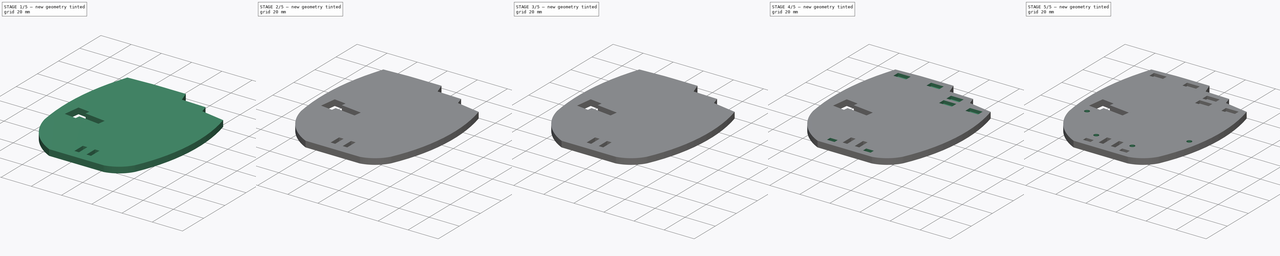
[diagram: build sequence overview — one tinted view per stage of 5, left to right]
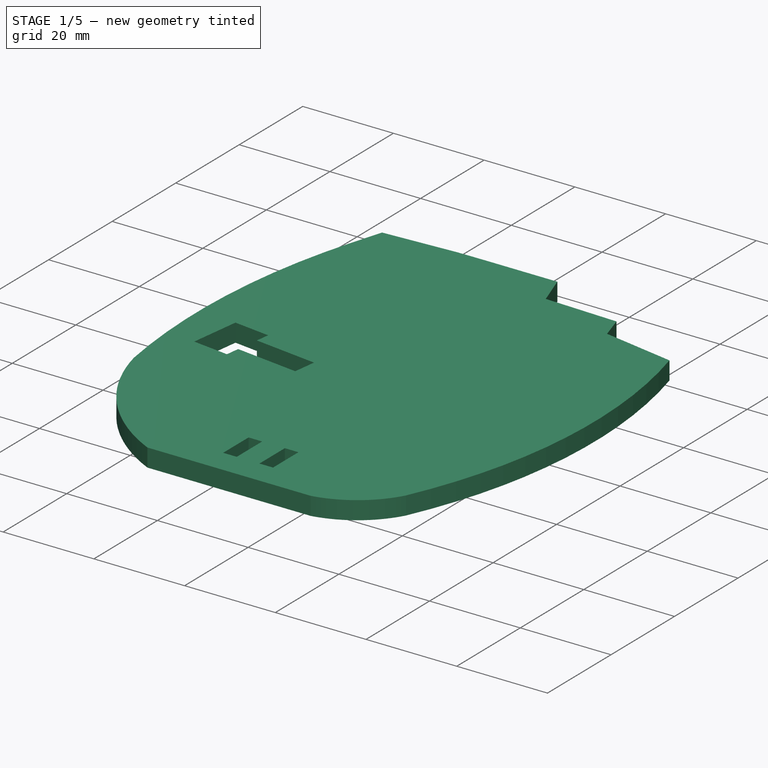
[diagram: stage 1 of 5 — iso view after this stage's code; geometry added in this stage tinted green]
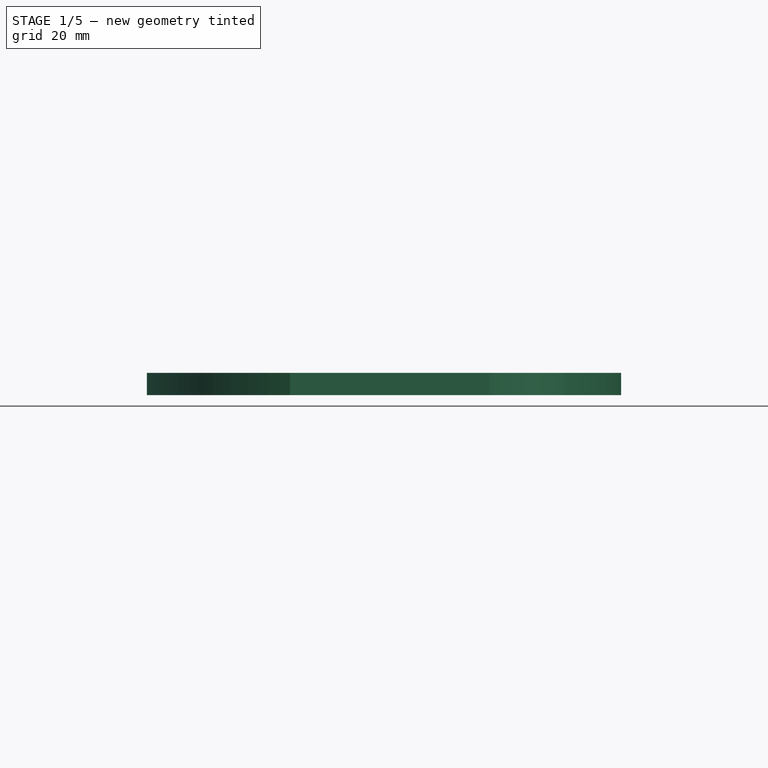
[diagram: stage 1 of 5 — front view after this stage's code; geometry added in this stage tinted green]
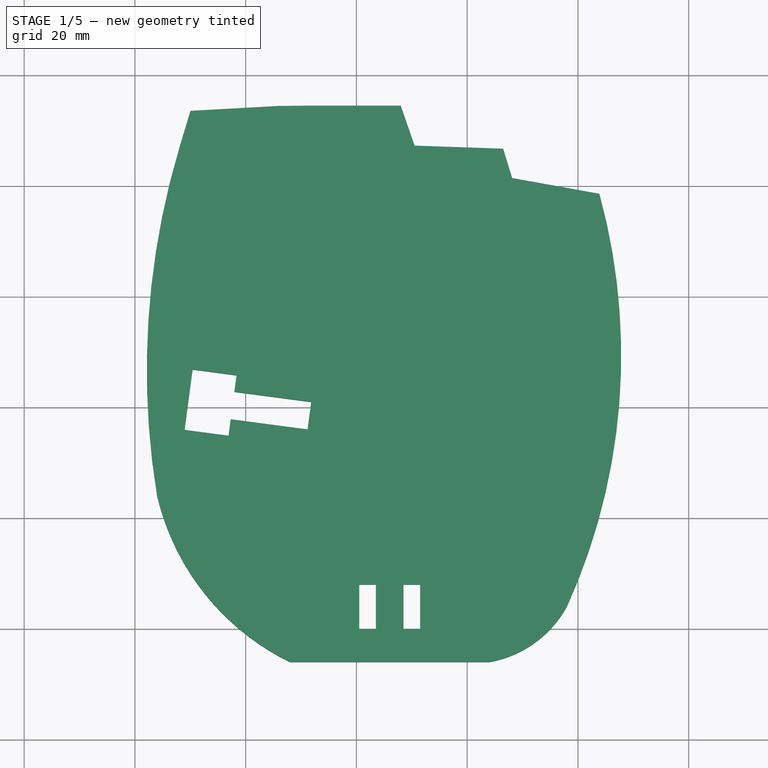
[diagram: stage 1 of 5 — top view after this stage's code; geometry added in this stage tinted green]
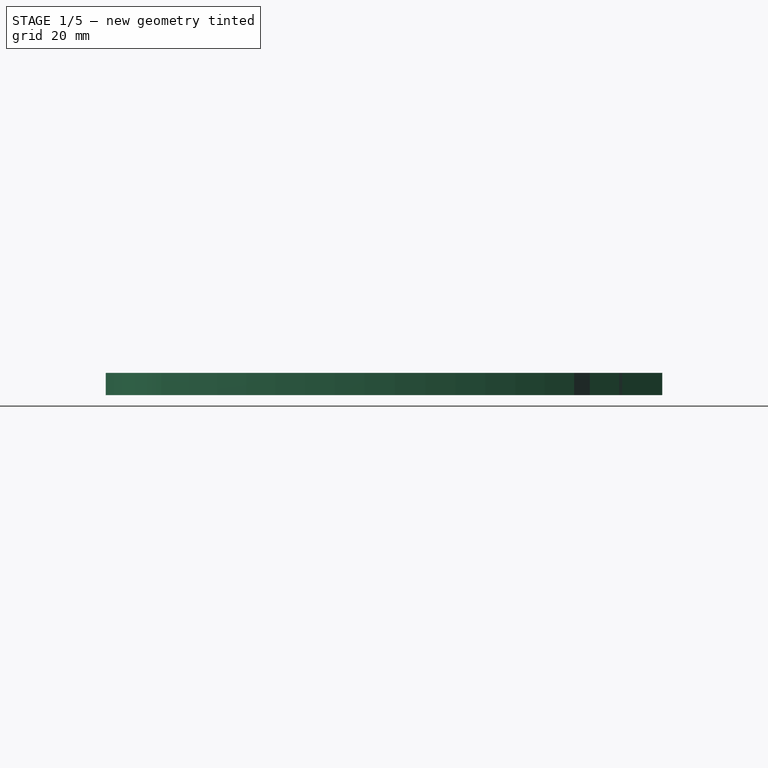
[diagram: stage 1 of 5 — right view after this stage's code; geometry added in this stage tinted green]
FCSTD DOCUMENT  (FreeCAD 0.15R4671 (Git))
Label: PalmUp
License: All rights reserved
LicenseURL: http://en.wikipedia.org/wiki/All_rights_reserved
objects: Sketcher::SketchObject×10, PartDesign::Pocket×8, PartDesign::Fillet×5, PartDesign::Pad×2, Part::FeaturePython×1
note: 36 computed .brp shape members not serialized (recipe doc carries the construction recipe); baked Part::Feature solids carry a one-line shape summary decoded from their .brp

FEATURE [Sketcher::SketchObject] Sketch
  sketch-geometry (21):
    g0: LineSegment StartX=43.8729 StartY=78.5795 StartZ=0 EndX=28.1271 EndY=81.4205 EndZ=0
    g1: LineSegment StartX=28.1271 StartY=81.4205 StartZ=0 EndX=26.4951 EndY=86.7201 EndZ=0
    g2: LineSegment StartX=26.4951 StartY=86.7201 StartZ=0 EndX=10.5049 EndY=87.2799 EndZ=0
    g3: LineSegment StartX=10.5049 StartY=87.2799 StartZ=0 EndX=8 EndY=94.5 EndZ=0
    g4: LineSegment StartX=8 StartY=94.5 StartZ=0 EndX=-8 EndY=94.5 EndZ=0
    g5: LineSegment StartX=-8 StartY=94.5 StartZ=0 EndX=-14.0123 EndY=94.4427 EndZ=0
    g6: LineSegment StartX=-14.0123 StartY=94.4427 StartZ=0 EndX=-29.9877 EndY=93.5573 EndZ=0
    g7: ArcOfCircle CenterX=20.5055 CenterY=13.6923 CenterZ=0 NormalX=0 NormalY=0 NormalZ=1 Radius=20 StartAngle=4.88802 EndAngle=5.77726
    g8: ArcOfCircle CenterX=-62.1892 CenterY=49.4105 CenterZ=0 NormalX=0 NormalY=0 NormalZ=1 Radius=110 StartAngle=5.85763 EndAngle=6.55157
    g9: ArcOfCircle CenterX=7.77666 CenterY=34.4213 CenterZ=0 NormalX=0 NormalY=0 NormalZ=1 Radius=45 StartAngle=3.3753 EndAngle=4.25737
    g10: LineSegment [constr] StartX=47.8108 StartY=0 StartZ=0 EndX=47.8108 EndY=94.5 EndZ=0
    g11: LineSegment [constr] StartX=-37.8597 StartY=0 StartZ=0 EndX=-37.8597 EndY=94.5 EndZ=0
    g12: GeomPoint [constr] X=0 Y=0 Z=0
    g13: LineSegment [constr] StartX=0 StartY=0 StartZ=0 EndX=-22 EndY=94 EndZ=0
    g14: LineSegment [constr] StartX=0 StartY=0 StartZ=0 EndX=0 EndY=94.5 EndZ=0
    g15: LineSegment [constr] StartX=18.5 StartY=87 StartZ=0 EndX=0 EndY=0 EndZ=0
    g16: LineSegment [constr] StartX=0 StartY=0 StartZ=0 EndX=36 EndY=80 EndZ=0
    g17: LineSegment StartX=-29.9877 StartY=93.5573 StartZ=0 EndX=-32 EndY=86.8225 EndZ=0
    g18: ArcOfCircle CenterX=102.14 CenterY=46.743 CenterZ=0 NormalX=0 NormalY=0 NormalZ=1 Radius=140 StartAngle=2.85125 EndAngle=3.30477
    g19: LineSegment StartX=-12 StartY=-6 StartZ=0 EndX=24 EndY=-6 EndZ=0
    g20: LineSegment [constr] StartX=0 StartY=0 StartZ=0 EndX=0 EndY=-6 EndZ=0
  constraints (67):
    c: Coincident(g1,g0)
    c: Coincident(g2,g1)
    c: Coincident(g3,g2)
    c: Coincident(g4,g3)
    c: Coincident(g5,g4)
    c: Coincident(g6,g5)
    c: Coincident(g8,g0)
    c: Coincident(g8,g7)
    c: Equal(g0,g2)
    c: Equal(g2,g4)
    c: Vertical(g10)
    c: Vertical(g11)
    c: Tangent(g10,g8)
    c: Radius(g7) = 20
    c: Radius(g9) = 45
    c: Radius(g8) = 110
    c: Coincident(g13,g12)
    c: PointOnObject(g13,g6)
    c: Coincident(g14,g12)
    c: PointOnObject(g14,g4)
    c: PointOnObject(g15,g2)
    c: Coincident(g15,g12)
    c: Coincident(g16,g12)
    c: PointOnObject(g16,g0)
    c: Horizontal(g4)
    c: Vertical(g14)
    c: Symmetric(g4,g3,g14)
    c: DistanceY(g14,g12) = -94.5
    c: DistanceY(g15,g12) = -87
    c: DistanceY(g12,g16) = 80
    c: Angle(g6,g13) = 1.74533
    c: DistanceY(g9,g12) = -24
    c: DistanceX(g9,g12) = 36
    c: DistanceX(g12,g7) = 38
    c: DistanceY(g12,g7) = 4
    c: Coincident(g-1,g12)
    c: Equal(g14,g11)
    c: Equal(g11,g10)
    c: PointOnObject(g10,g-1)
    c: PointOnObject(g11,g-1)
    c: Angle(g16,g0) = 1.81514
    c: Angle(g15,g2) = 1.74533
    c: Distance(g2,g15) = 8
    c: Distance(g0,g16) = 8
    c: DistanceX(g4) = -16
    c: Distance(g13,g5) = 8
    c: DistanceY(g-1,g13) = 94
    c: DistanceX(g-1,g13) = -22
    c: DistanceX(g14,g15) = 18.5
    c: DistanceX(g-1,g16) = 36
    c: Coincident(g17,g6)
    c: Equal(g6,g4)
    c: Coincident(g18,g9)
    c: Coincident(g18,g17)
    c: Radius(g18) = 140
    c: Tangent(g17,g18)
    c: DistanceX(g-1,g17) = -32
    c: Tangent(g11,g18)
    c: Coincident(g19,g9)
    c: Coincident(g19,g7)
    c: Horizontal(g19)
    c: DistanceX(g19) = 36
    c: Coincident(g20,g-1)
    c: PointOnObject(g20,g19)
    c: Vertical(g20)
    c: DistanceX(g-1,g9) = -12
    c: DistanceY(g-1,g9) = -6
FEATURE [PartDesign::Pad] Pad  label="Main Down Palm"
  Length = 4
  Length2 = 100
  Sketch = -> Sketch
  Type = 0
FEATURE [Sketcher::SketchObject] Sketch016
  Placement = pos=(0,0,0) rot=(1,0,0;3.14159rad)
  Support = -> Pad [Face14]
  sketch-geometry (11):
    g0: LineSegment StartX=-8.82848 StartY=-36.0217 StartZ=0 EndX=-8.17152 EndY=-40.9783 EndZ=0
    g1: LineSegment StartX=-29.5866 StartY=-46.8429 StartZ=0 EndX=-31.0319 EndY=-35.9383 EndZ=0
    g2: GeomPoint [constr] X=-8.5 Y=-38.5 Z=0
    g3: LineSegment [constr] StartX=0 StartY=0 StartZ=0 EndX=-8.5 EndY=-38.5 EndZ=0
    g4: LineSegment [constr] StartX=-8.5 StartY=-38.5 StartZ=0 EndX=-30.3093 EndY=-41.3906 EndZ=0
    g5: LineSegment StartX=-31.0319 StartY=-35.9383 StartZ=0 EndX=-23.1013 EndY=-34.8872 EndZ=0
    g6: LineSegment StartX=-23.1013 StartY=-34.8872 StartZ=0 EndX=-22.7071 EndY=-37.8612 EndZ=0
    g7: LineSegment StartX=-22.7071 StartY=-37.8612 StartZ=0 EndX=-8.82848 EndY=-36.0217 EndZ=0
    g8: LineSegment StartX=-29.5866 StartY=-46.8429 StartZ=0 EndX=-21.656 EndY=-45.7918 EndZ=0
    g9: LineSegment StartX=-21.656 StartY=-45.7918 StartZ=0 EndX=-22.0501 EndY=-42.8178 EndZ=0
    g10: LineSegment StartX=-22.0501 StartY=-42.8178 StartZ=0 EndX=-8.17152 EndY=-40.9783 EndZ=0
  constraints (30):
    c: Distance(g0) = 5
    c: PointOnObject(g2,g0)
    c: Distance(g2,g0) = 2.5
    c: DistanceX(g-1,g2) = -8.5
    c: DistanceY(g-1,g2) = -38.5
    c: Coincident(g3,g-1)
    c: Coincident(g2,g3)
    c: Angle(g0,g3) = 2.79253
    c: Parallel(g1,g0)
    c: Coincident(g4,g2)
    c: PointOnObject(g4,g1)
    c: Symmetric(g1,g1,g4)
    c: Distance(g4) = 22
    c: Distance(g1) = 11
    c: Coincident(g5,g6)
    c: Coincident(g6,g7)
    c: Coincident(g7,g0)
    c: Coincident(g1,g8)
    c: Coincident(g8,g9)
    c: Coincident(g9,g10)
    c: Coincident(g10,g0)
    c: Parallel(g10,g4)
    c: Parallel(g4,g7)
    c: Perpendicular(g7,g6)
    c: Perpendicular(g9,g10)
    c: Parallel(g5,g4)
    c: Parallel(g4,g8)
    c: Symmetric(g9,g6,g4)
    c: Coincident(g5,g1)
    c: Distance(g7) = 14
FEATURE [PartDesign::Pocket] Pocket  label="Thumb Tendon"
  Length = 5
  Sketch = -> Sketch016
  Type = 1
FEATURE [Sketcher::SketchObject] Sketch018
  ExternalGeometry = -> [Pocket]
  Placement = pos=(0,0,0) rot=(1,0,0;3.14159rad)
  Support = -> Pocket [Face4]
  sketch-geometry (11):
    g0: LineSegment StartX=11.5 StartY=0 StartZ=0 EndX=11.5 EndY=-8 EndZ=0
    g1: LineSegment StartX=0.5 StartY=-8 StartZ=0 EndX=0.5 EndY=0 EndZ=0
    g2: LineSegment [constr] StartX=6 StartY=6 StartZ=0 EndX=6 EndY=-8 EndZ=0
    g3: LineSegment StartX=0.5 StartY=-8 StartZ=0 EndX=3.5 EndY=-8 EndZ=0
    g4: LineSegment StartX=8.5 StartY=-8 StartZ=0 EndX=11.5 EndY=-8 EndZ=0
    g5: LineSegment StartX=8.5 StartY=-8 StartZ=0 EndX=8.5 EndY=0 EndZ=0
    g6: LineSegment StartX=3.5 StartY=-8 StartZ=0 EndX=3.5 EndY=0 EndZ=0
    g7: LineSegment StartX=0.5 StartY=0 StartZ=0 EndX=3.5 EndY=0 EndZ=0
    g8: LineSegment StartX=8.5 StartY=0 StartZ=0 EndX=11.5 EndY=0 EndZ=0
    g9: LineSegment [constr] StartX=3.5 StartY=0 StartZ=0 EndX=8.5 EndY=0 EndZ=0
    g10: LineSegment [constr] StartX=3.5 StartY=-8 StartZ=0 EndX=8.5 EndY=-8 EndZ=0
  constraints (30):
    c: Vertical(g0)
    c: Vertical(g1)
    c: Symmetric(g1,g0,g2)
    c: DistanceY(g0) = -8
    c: Coincident(g3,g1)
    c: Horizontal(g3)
    c: Coincident(g4,g0)
    c: Horizontal(g4)
    c: Equal(g3,g4)
    c: PointOnObject(g2,g-3)
    c: Symmetric(g-3,g-3,g2)
    c: DistanceY(g0,g-3) = 6
    c: Coincident(g5,g4)
    c: Vertical(g5)
    c: Coincident(g6,g3)
    c: Vertical(g6)
    c: Coincident(g7,g1)
    c: Coincident(g7,g6)
    c: Horizontal(g7)
    c: Coincident(g8,g5)
    c: Coincident(g8,g0)
    c: Horizontal(g8)
    c: Coincident(g9,g6)
    c: Coincident(g9,g5)
    c: Horizontal(g9)
    c: Coincident(g10,g3)
    c: Coincident(g10,g4)
    c: PointOnObject(g2,g10)
    c: DistanceX(g1,g0) = 11
    c: DistanceX(g8) = 3
FEATURE [PartDesign::Pocket] Pocket001  label="Tendon Pillars Socket"
  Length = 5
  Sketch = -> Sketch018
  Type = 1
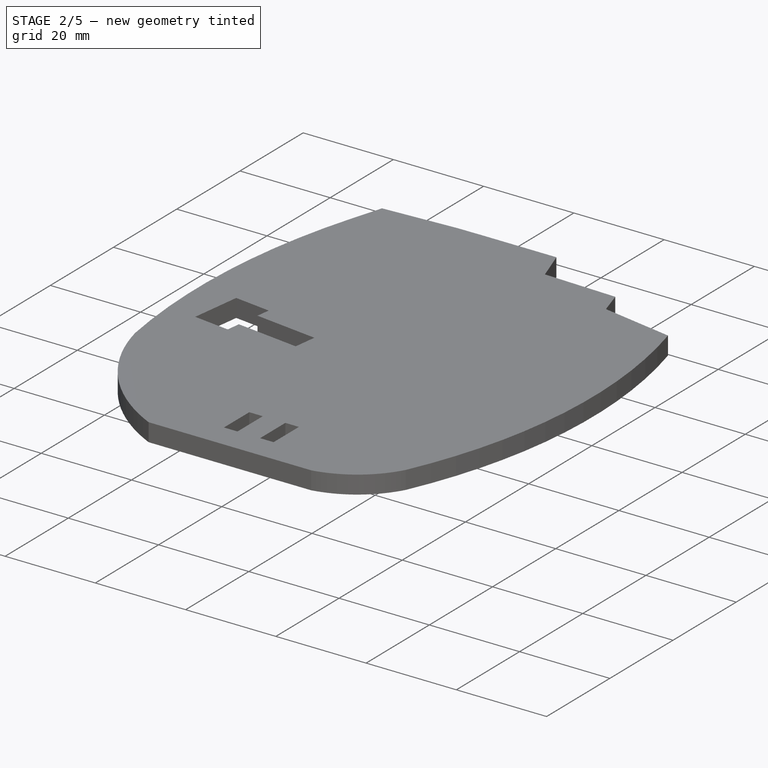
[diagram: stage 2 of 5 — iso view after this stage's code; geometry added in this stage tinted green]
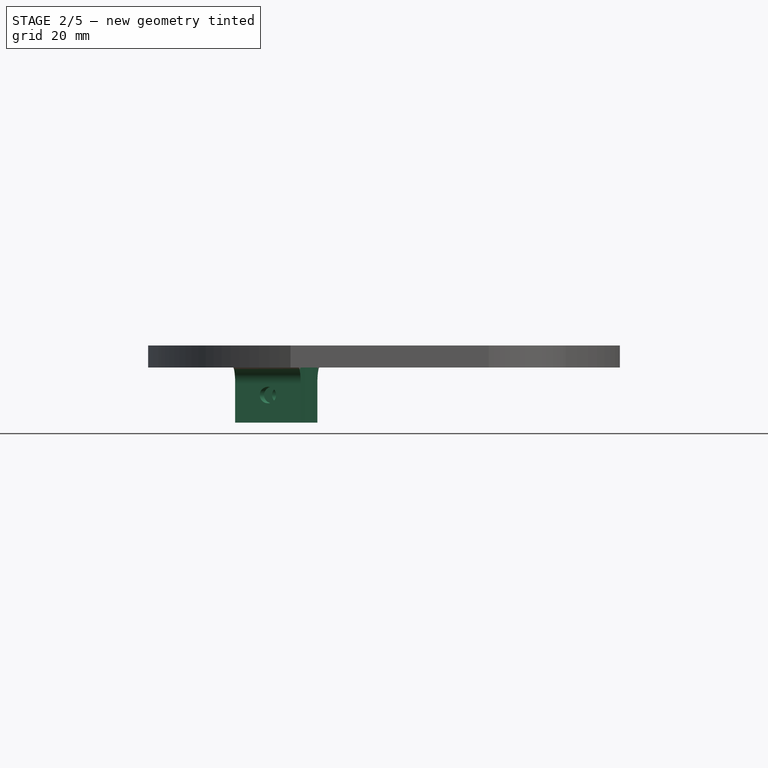
[diagram: stage 2 of 5 — front view after this stage's code; geometry added in this stage tinted green]
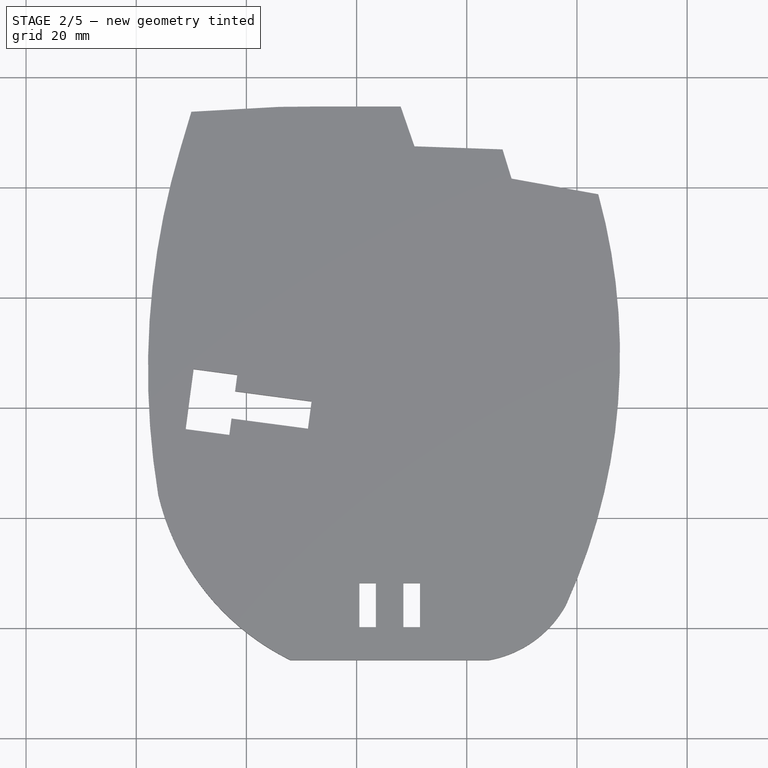
[diagram: stage 2 of 5 — top view after this stage's code; geometry added in this stage tinted green]
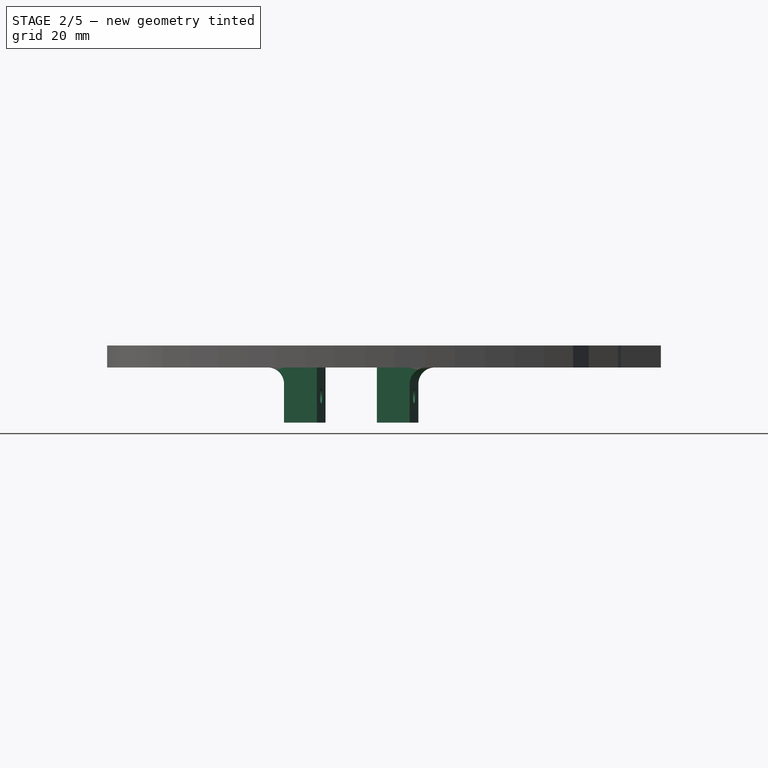
[diagram: stage 2 of 5 — right view after this stage's code; geometry added in this stage tinted green]
FEATURE [Sketcher::SketchObject] Sketch019
  ExternalGeometry = -> [Pocket001]
  Placement = pos=(0,0,0) rot=(1,0,0;3.14159rad)
  Support = -> Pocket001 [Face4]
  sketch-geometry (8):
    g0: LineSegment StartX=-21.25 StartY=-33.633 StartZ=0 EndX=-9.35404 EndY=-32.0564 EndZ=0
    g1: LineSegment StartX=-9.35404 StartY=-32.0564 StartZ=0 EndX=-10.1424 EndY=-26.1084 EndZ=0
    g2: LineSegment StartX=-10.1424 StartY=-26.1084 StartZ=0 EndX=-22.0384 EndY=-27.6851 EndZ=0
    g3: LineSegment StartX=-22.0384 StartY=-27.6851 StartZ=0 EndX=-21.25 EndY=-33.633 EndZ=0
    g4: LineSegment StartX=-19.8047 StartY=-44.5377 StartZ=0 EndX=-7.90874 EndY=-42.961 EndZ=0
    g5: LineSegment StartX=-7.90874 StartY=-42.961 StartZ=0 EndX=-7.12039 EndY=-48.909 EndZ=0
    g6: LineSegment StartX=-7.12039 StartY=-48.909 StartZ=0 EndX=-19.0164 EndY=-50.4857 EndZ=0
    g7: LineSegment StartX=-19.0164 StartY=-50.4857 StartZ=0 EndX=-19.8047 EndY=-44.5377 EndZ=0
  constraints (24):
    c: Coincident(g0,g1)
    c: Coincident(g1,g2)
    c: Coincident(g2,g3)
    c: Coincident(g3,g0)
    c: Coincident(g5,g6)
    c: Coincident(g6,g7)
    c: Perpendicular(g-4,g7)
    c: Parallel(g7,g5)
    c: Parallel(g6,g-4)
    c: Distance(g4,g4) = 12
    c: Distance(g5) = 6
    c: Parallel(g0,g-3)
    c: Perpendicular(g0,g1)
    c: Parallel(g1,g3)
    c: Parallel(g0,g2)
    c: Equal(g1,g5)
    c: Distance(g0) = 12
    c: PointOnObject(g-3,g1)
    c: Distance(g0,g-3) = 4
    c: Coincident(g4,g5)
    c: Coincident(g7,g4)
    c: Parallel(g4,g6)
    c: PointOnObject(g-4,g5)
    c: Distance(g-4,g4) = 2
FEATURE [PartDesign::Pad] Pad001  label="Thumb Base"
  Length = 10
  Length2 = 100
  Sketch = -> Sketch019
  Type = 0
FEATURE [Sketcher::SketchObject] Sketch020
  ExternalGeometry = -> [Pad001]
  Placement = pos=(3.22558,24.3366,0) rot=(0.995675,-0.065696,-0.065696;1.57513rad)
  Support = -> Pad001 [Face19]
  sketch-geometry (2):
    g0: Circle CenterX=-19.4849 CenterY=-5 CenterZ=0 NormalX=0 NormalY=0 NormalZ=1 Radius=1.5
    g1: LineSegment [constr] StartX=-19.4849 StartY=-10 StartZ=0 EndX=-19.4849 EndY=-5 EndZ=0
  constraints (6):
    c: Vertical(g1)
    c: Coincident(g1,g0)
    c: Radius(g0) = 1.5
    c: PointOnObject(g1,g-3)
    c: Symmetric(g-3,g-3,g1)
    c: DistanceY(g0,g-3) = -5
FEATURE [PartDesign::Pocket] Pocket002  label="Thumb Axis"
  Length = 5
  Sketch = -> Sketch020
  Type = 1
FEATURE [PartDesign::Fillet] Fillet
  Base = -> Pocket002 [Edge43,Edge24]
  Radius = 3
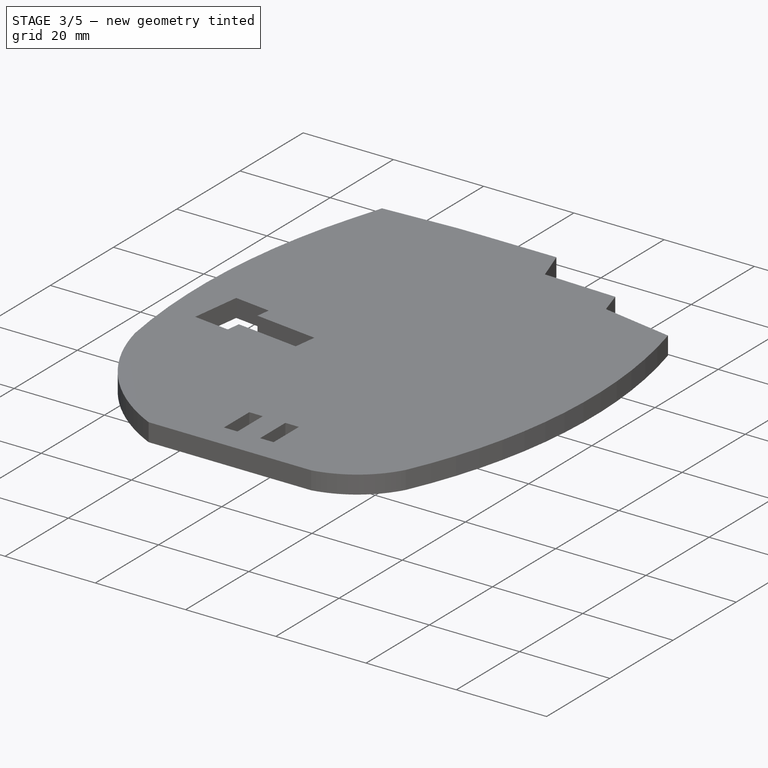
[diagram: stage 3 of 5 — iso view after this stage's code; geometry added in this stage tinted green]
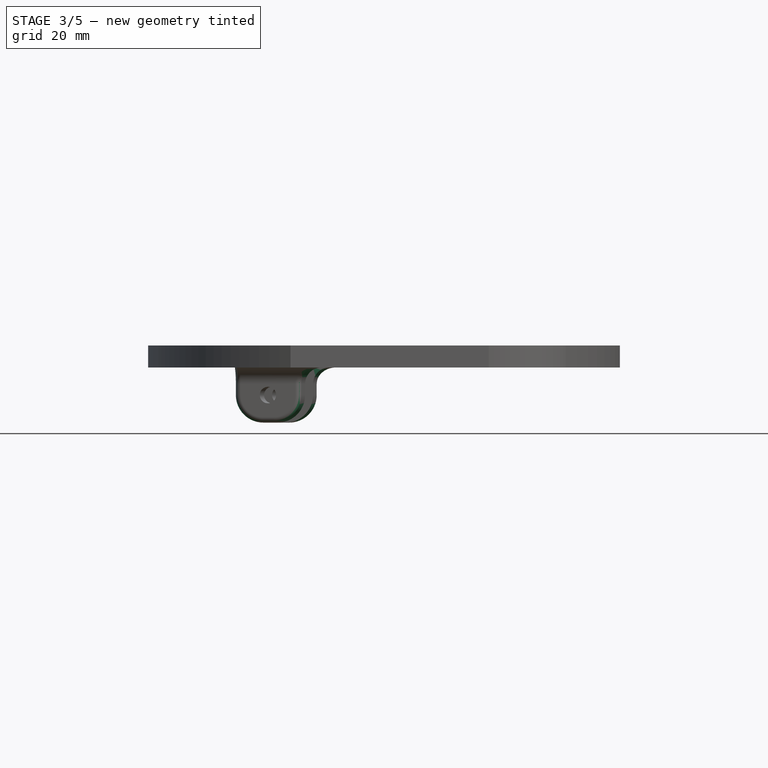
[diagram: stage 3 of 5 — front view after this stage's code; geometry added in this stage tinted green]
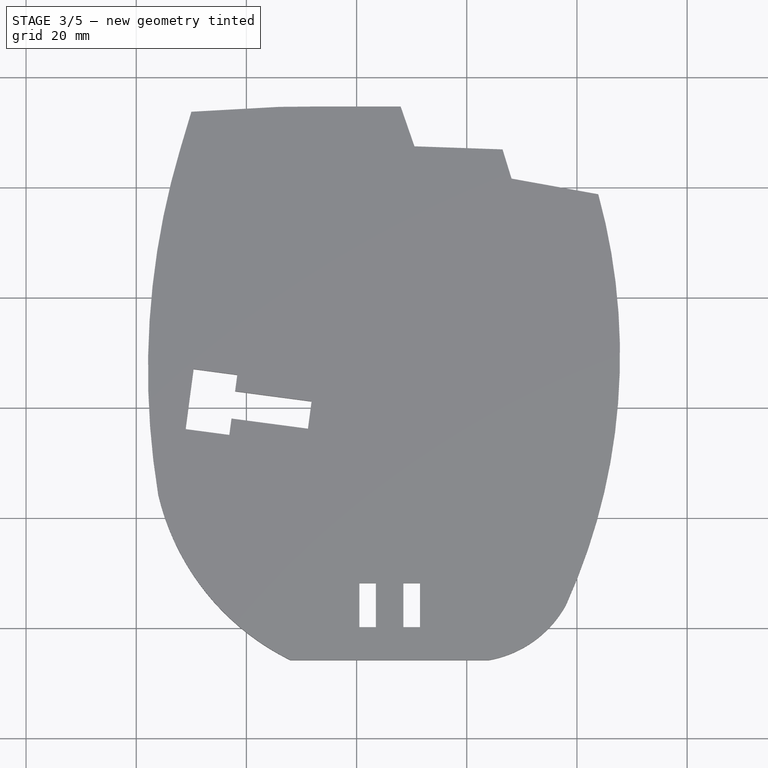
[diagram: stage 3 of 5 — top view after this stage's code; geometry added in this stage tinted green]
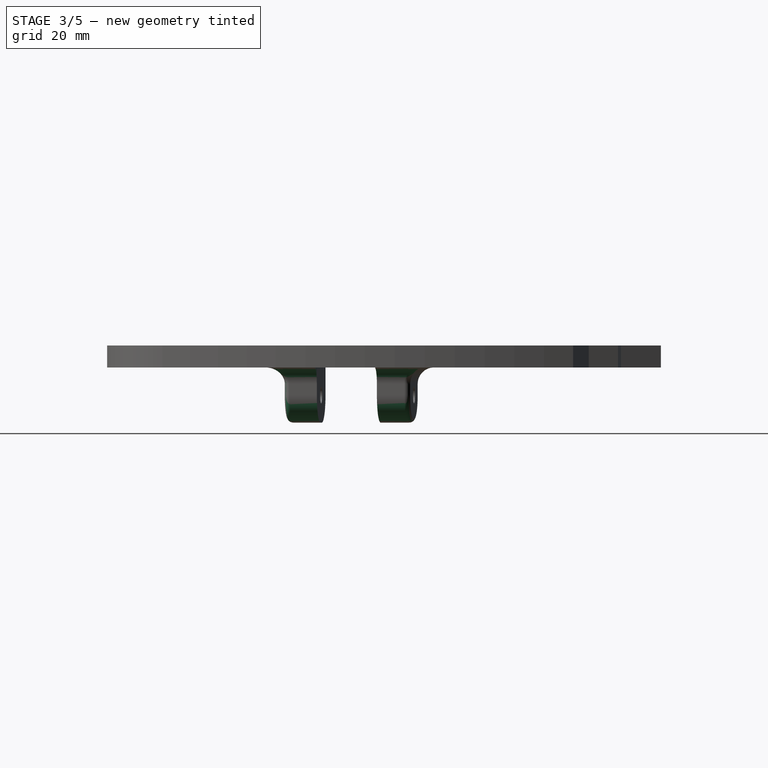
[diagram: stage 3 of 5 — right view after this stage's code; geometry added in this stage tinted green]
FEATURE [PartDesign::Fillet] Fillet001
  Base = -> Fillet [Edge121,Edge113,Edge44,Edge52]
  Radius = 5
FEATURE [PartDesign::Fillet] Fillet002
  Base = -> Fillet001 [Edge6,Edge5,Edge54,Edge53]
  Radius = 3
FEATURE [PartDesign::Fillet] Fillet003
  Base = -> Fillet002 [Edge146]
  Radius = 1
FEATURE [PartDesign::Fillet] Fillet004
  Base = -> Fillet003 [Edge163]
  Radius = 1
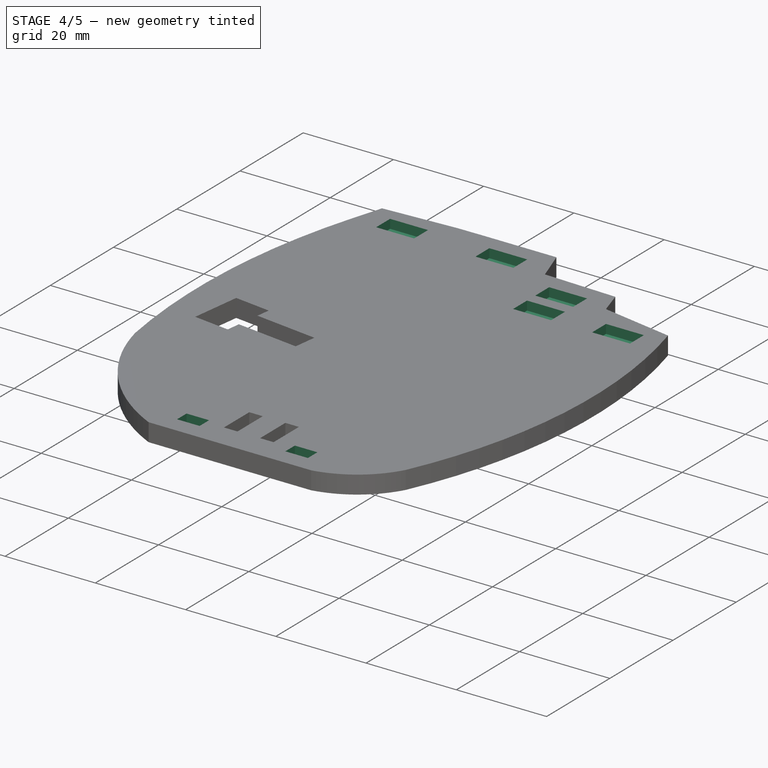
[diagram: stage 4 of 5 — iso view after this stage's code; geometry added in this stage tinted green]
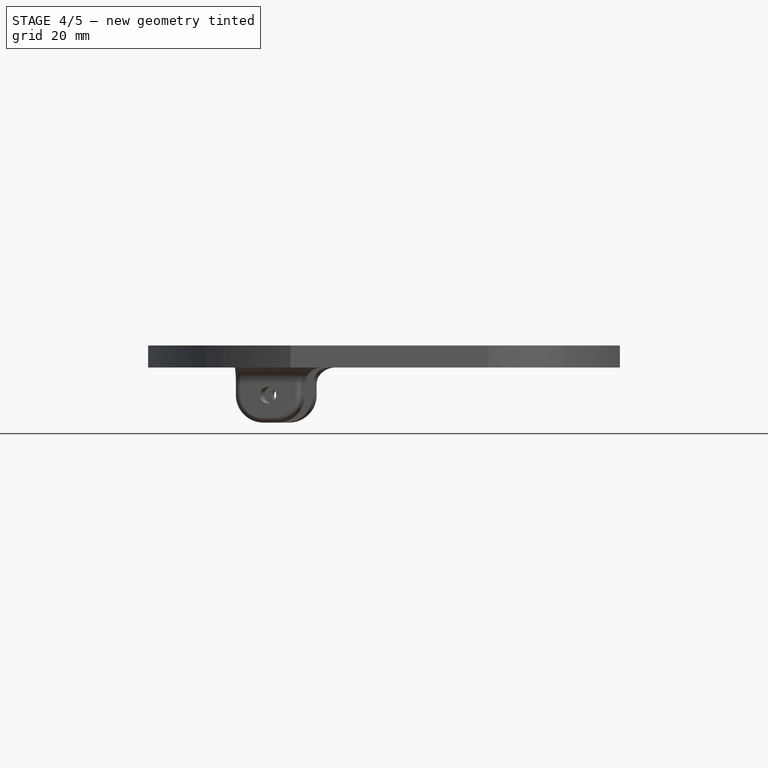
[diagram: stage 4 of 5 — front view after this stage's code; geometry added in this stage tinted green]
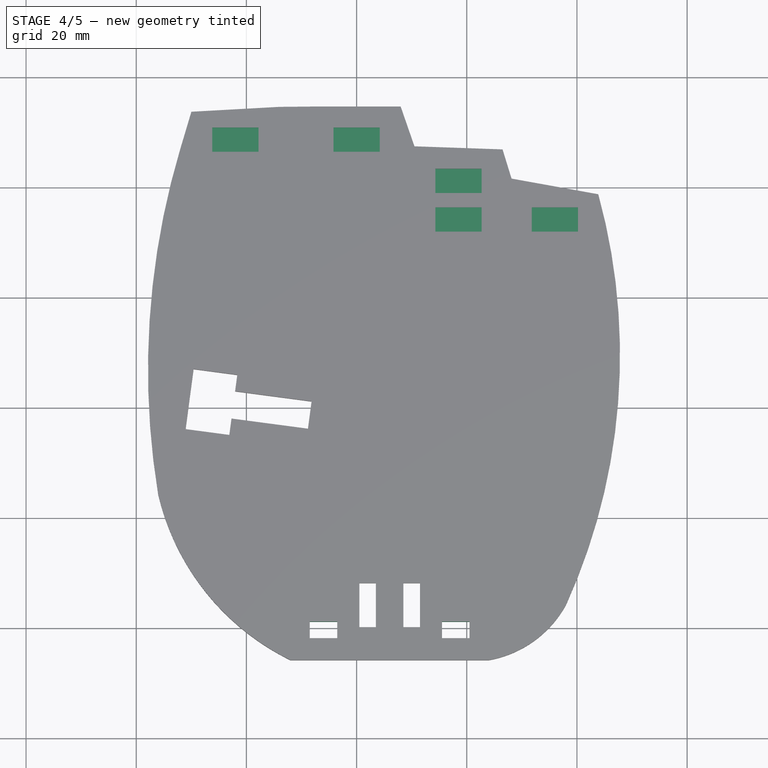
[diagram: stage 4 of 5 — top view after this stage's code; geometry added in this stage tinted green]
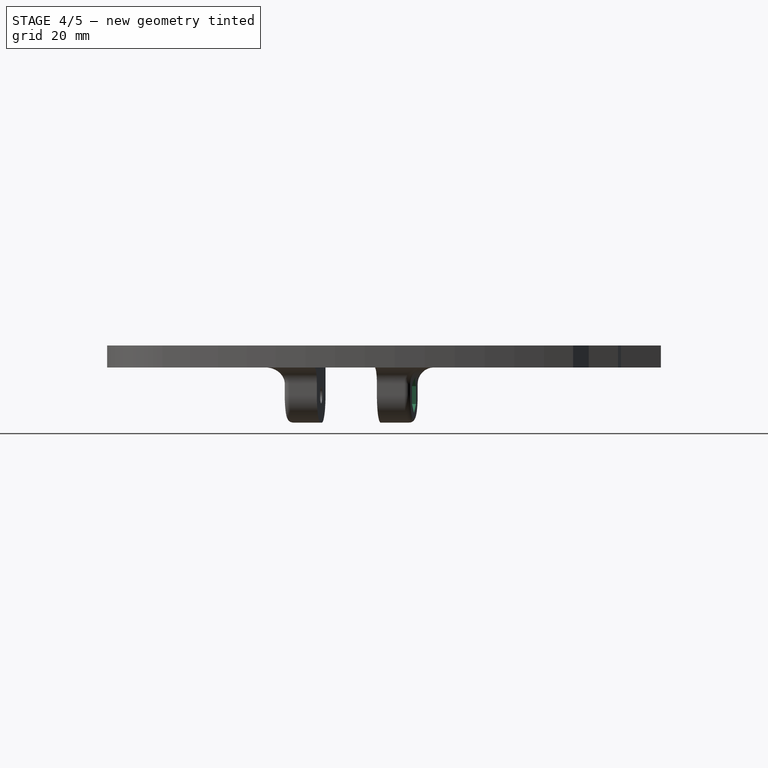
[diagram: stage 4 of 5 — right view after this stage's code; geometry added in this stage tinted green]
FEATURE [Sketcher::SketchObject] Sketch021
  ExternalGeometry = -> [Pad]
  Placement = pos=(0,0,4) rot=(0,0,1;0rad)
  Support = -> Fillet004 [Face63]
  sketch-geometry (24):
    g0: LineSegment StartX=-4.2 StartY=86.3 StartZ=0 EndX=4.2 EndY=86.3 EndZ=0
    g1: LineSegment StartX=4.2 StartY=86.3 StartZ=0 EndX=4.2 EndY=90.7 EndZ=0
    g2: LineSegment StartX=4.2 StartY=90.7 StartZ=0 EndX=-4.2 EndY=90.7 EndZ=0
    g3: LineSegment StartX=-4.2 StartY=90.7 StartZ=0 EndX=-4.2 EndY=86.3 EndZ=0
    g4: LineSegment StartX=-26.2 StartY=90.7 StartZ=0 EndX=-17.8 EndY=90.7 EndZ=0
    g5: LineSegment StartX=-17.8 StartY=90.7 StartZ=0 EndX=-17.8 EndY=86.3 EndZ=0
    g6: LineSegment StartX=-17.8 StartY=86.3 StartZ=0 EndX=-26.2 EndY=86.3 EndZ=0
    g7: LineSegment StartX=-26.2 StartY=86.3 StartZ=0 EndX=-26.2 EndY=90.7 EndZ=0
    g8: LineSegment StartX=14.3 StartY=71.8 StartZ=0 EndX=22.7 EndY=71.8 EndZ=0
    g9: LineSegment StartX=22.7 StartY=71.8 StartZ=0 EndX=22.7 EndY=76.2 EndZ=0
    g10: LineSegment StartX=22.7 StartY=76.2 StartZ=0 EndX=14.3 EndY=76.2 EndZ=0
    g11: LineSegment StartX=14.3 StartY=76.2 StartZ=0 EndX=14.3 EndY=71.8 EndZ=0
    g12: LineSegment StartX=31.8 StartY=76.2 StartZ=0 EndX=40.2 EndY=76.2 EndZ=0
    g13: LineSegment StartX=40.2 StartY=76.2 StartZ=0 EndX=40.2 EndY=71.8 EndZ=0
    g14: LineSegment StartX=40.2 StartY=71.8 StartZ=0 EndX=31.8 EndY=71.8 EndZ=0
    g15: LineSegment StartX=31.8 StartY=71.8 StartZ=0 EndX=31.8 EndY=76.2 EndZ=0
    g16: LineSegment StartX=14.3 StartY=78.8 StartZ=0 EndX=22.7 EndY=78.8 EndZ=0
    g17: LineSegment StartX=22.7 StartY=78.8 StartZ=0 EndX=22.7 EndY=83.2 EndZ=0
    g18: LineSegment StartX=22.7 StartY=83.2 StartZ=0 EndX=14.3 EndY=83.2 EndZ=0
    g19: LineSegment StartX=14.3 StartY=83.2 StartZ=0 EndX=14.3 EndY=78.8 EndZ=0
    g20: LineSegment [constr] StartX=-22 StartY=94 StartZ=0 EndX=-22 EndY=90.7 EndZ=0
    g21: LineSegment [constr] StartX=0 StartY=94.5 StartZ=0 EndX=0 EndY=90.7 EndZ=0
    g22: LineSegment [constr] StartX=18.5 StartY=87 StartZ=0 EndX=18.5 EndY=76.2 EndZ=0
    g23: LineSegment [constr] StartX=36 StartY=80 StartZ=0 EndX=36 EndY=76.2 EndZ=0
  constraints (75):
    c: Coincident(g0,g1)
    c: Coincident(g1,g2)
    c: Coincident(g2,g3)
    c: Coincident(g3,g0)
    c: Horizontal(g0)
    c: Horizontal(g2)
    c: Vertical(g1)
    c: Vertical(g3)
    c: DistanceX(g2) = -8.4
    c: DistanceY(g3) = -4.4
    c: Coincident(g4,g5)
    c: Coincident(g5,g6)
    c: Coincident(g6,g7)
    c: Coincident(g7,g4)
    c: Horizontal(g4)
    c: Horizontal(g6)
    c: Vertical(g5)
    c: Vertical(g7)
    c: Equal(g7,g3)
    c: Equal(g4,g2)
    c: Coincident(g8,g9)
    c: Coincident(g9,g10)
    c: Coincident(g10,g11)
    c: Coincident(g11,g8)
    c: Horizontal(g8)
    c: Horizontal(g10)
    c: Vertical(g9)
    c: Vertical(g11)
    c: Equal(g10,g2)
    c: Equal(g11,g3)
    c: Coincident(g12,g13)
    c: Coincident(g13,g14)
    c: Coincident(g14,g15)
    c: Coincident(g15,g12)
    c: Horizontal(g12)
    c: Horizontal(g14)
    c: Vertical(g13)
    c: Vertical(g15)
    c: Equal(g15,g3)
    c: Equal(g14,g2)
    c: Coincident(g16,g17)
    c: Coincident(g17,g18)
    c: Coincident(g18,g19)
    c: Coincident(g19,g16)
    c: Horizontal(g16)
    c: Horizontal(g18)
    c: Vertical(g17)
    c: Vertical(g19)
    c: Equal(g18,g2)
    c: Equal(g19,g3)
    c: PointOnObject(g20,g-4)
    c: PointOnObject(g20,g4)
    c: Vertical(g20)
    c: Symmetric(g4,g4,g20)
    c: PointOnObject(g21,g-3)
    c: PointOnObject(g21,g2)
    c: Vertical(g21)
    c: PointOnObject(g21,g-2)
    c: Symmetric(g2,g1,g21)
    c: PointOnObject(g22,g-5)
    c: PointOnObject(g22,g10)
    c: Symmetric(g18,g17,g22)
    c: Symmetric(g9,g10,g22)
    c: PointOnObject(g23,g-6)
    c: PointOnObject(g23,g12)
    c: Vertical(g23)
    c: Symmetric(g12,g12,g23)
    c: DistanceY(g20) = -3.3
    c: DistanceY(g21) = -3.8
    c: DistanceY(g23) = -3.8
    c: DistanceY(g17,g22) = 3.8
    c: DistanceY(g22) = -10.8
    c: Distance(g22,g-5) = 8
    c: Distance(g23,g-6) = 8
    c: Distance(g20,g-4) = 8
FEATURE [PartDesign::Pocket] Pocket003  label="Tendon Routing Pillars Socket"
  Length = 2
  Sketch = -> Sketch021
  Type = 0
FEATURE [Sketcher::SketchObject] Sketch022
  ExternalGeometry = -> [Pocket003]
  Placement = pos=(0,0,0) rot=(1,0,0;3.14159rad)
  Support = -> Pocket003 [Face1]
  sketch-geometry (12):
    g0: LineSegment StartX=-8.5 StartY=2 StartZ=0 EndX=-3.5 EndY=2 EndZ=0
    g1: LineSegment StartX=-3.5 StartY=2 StartZ=0 EndX=-3.5 EndY=-1 EndZ=0
    g2: LineSegment StartX=-3.5 StartY=-1 StartZ=0 EndX=-8.5 EndY=-1 EndZ=0
    g3: LineSegment StartX=-8.5 StartY=-1 StartZ=0 EndX=-8.5 EndY=2 EndZ=0
    g4: LineSegment StartX=15.5 StartY=2 StartZ=0 EndX=20.5 EndY=2 EndZ=0
    g5: LineSegment StartX=20.5 StartY=2 StartZ=0 EndX=20.5 EndY=-1 EndZ=0
    g6: LineSegment StartX=20.5 StartY=-1 StartZ=0 EndX=15.5 EndY=-1 EndZ=0
    g7: LineSegment StartX=15.5 StartY=-1 StartZ=0 EndX=15.5 EndY=2 EndZ=0
    g8: LineSegment [constr] StartX=3.5 StartY=0 StartZ=0 EndX=8.5 EndY=0 EndZ=0
    g9: LineSegment [constr] StartX=6 StartY=0 StartZ=0 EndX=6 EndY=6 EndZ=0
    g10: LineSegment [constr] StartX=-6 StartY=2 StartZ=0 EndX=-6 EndY=-1 EndZ=0
    g11: LineSegment [constr] StartX=18 StartY=2 StartZ=0 EndX=18 EndY=-1 EndZ=0
  constraints (37):
    c: Coincident(g0,g1)
    c: Coincident(g1,g2)
    c: Coincident(g2,g3)
    c: Coincident(g3,g0)
    c: Horizontal(g0)
    c: Horizontal(g2)
    c: Vertical(g1)
    c: Vertical(g3)
    c: Coincident(g4,g5)
    c: Coincident(g5,g6)
    c: Coincident(g6,g7)
    c: Coincident(g7,g4)
    c: Horizontal(g4)
    c: Horizontal(g6)
    c: Vertical(g5)
    c: Vertical(g7)
    c: Coincident(g8,g-3)
    c: Coincident(g8,g-4)
    c: PointOnObject(g9,g8)
    c: Vertical(g9)
    c: Symmetric(g8,g8,g9)
    c: PointOnObject(g10,g0)
    c: Vertical(g10)
    c: Vertical(g11)
    c: PointOnObject(g10,g2)
    c: PointOnObject(g11,g6)
    c: Equal(g4,g0)
    c: Equal(g7,g1)
    c: Symmetric(g0,g4,g9)
    c: Symmetric(g0,g0,g10)
    c: Symmetric(g4,g4,g11)
    c: DistanceX(g10,g11) = 24
    c: PointOnObject(g9,g-5)
    c: DistanceY(g5) = -3
    c: DistanceX(g6) = -5
    c: PointOnObject(g11,g4)
    c: DistanceY(g0,g-3) = -2
FEATURE [PartDesign::Pocket] Pocket004  label="Flange Pockets"
  Length = 5
  Sketch = -> Sketch022
  Type = 1
FEATURE [Sketcher::SketchObject] Sketch023
  ExternalGeometry = -> [Pocket004]
  Placement = pos=(6.24758,47.1372,0) rot=(0.046605,0.706338,0.706338;3.04845rad)
  Support = -> Pocket004 [Face55]
  sketch-geometry (7):
    g0: LineSegment StartX=22.2995 StartY=-3.375 StartZ=0 EndX=19.4849 EndY=-1.75 EndZ=0
    g1: LineSegment StartX=19.4849 StartY=-1.75 StartZ=0 EndX=16.6703 EndY=-3.375 EndZ=0
    g2: LineSegment StartX=16.6703 StartY=-3.375 StartZ=0 EndX=16.6703 EndY=-6.625 EndZ=0
    g3: LineSegment StartX=16.6703 StartY=-6.625 StartZ=0 EndX=19.4849 EndY=-8.25 EndZ=0
    g4: LineSegment StartX=19.4849 StartY=-8.25 StartZ=0 EndX=22.2995 EndY=-6.625 EndZ=0
    g5: LineSegment StartX=22.2995 StartY=-6.625 StartZ=0 EndX=22.2995 EndY=-3.375 EndZ=0
    g6: Circle [constr] CenterX=19.4849 CenterY=-5 CenterZ=0 NormalX=0 NormalY=0 NormalZ=1 Radius=3.25
  constraints (17):
    c: Coincident(g0,g1)
    c: Coincident(g1,g2)
    c: Coincident(g2,g3)
    c: Coincident(g3,g4)
    c: Coincident(g4,g5)
    c: Coincident(g5,g0)
    c: Equal(g0, g1-g5) x5
    c: PointOnObject(g0,g6)
    c: PointOnObject(g1,g6)
    c: PointOnObject(g2,g6)
    c: PointOnObject(g3,g6)
    c: PointOnObject(g4,g6)
    c: PointOnObject(g5,g6)
    c: Coincident(g3,g-3)
    c: Vertical(g5)
    c: Coincident(g-3,g6)
    c: Radius(g6) = 3.25
FEATURE [PartDesign::Pocket] Pocket005
  Length = 6
  Midplane = true
  Sketch = -> Sketch023
  Type = 0
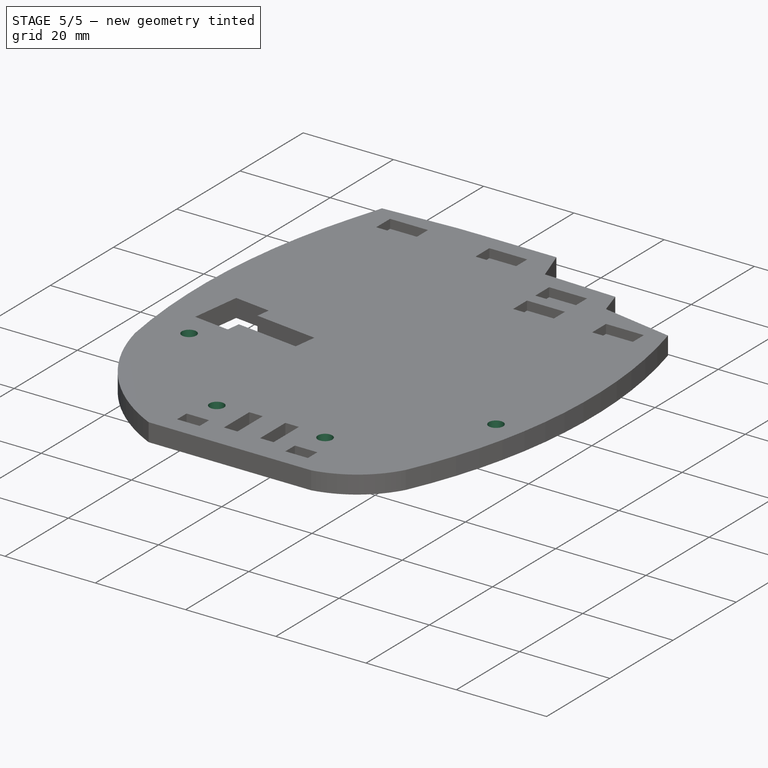
[diagram: stage 5 of 5 — iso view after this stage's code; geometry added in this stage tinted green]
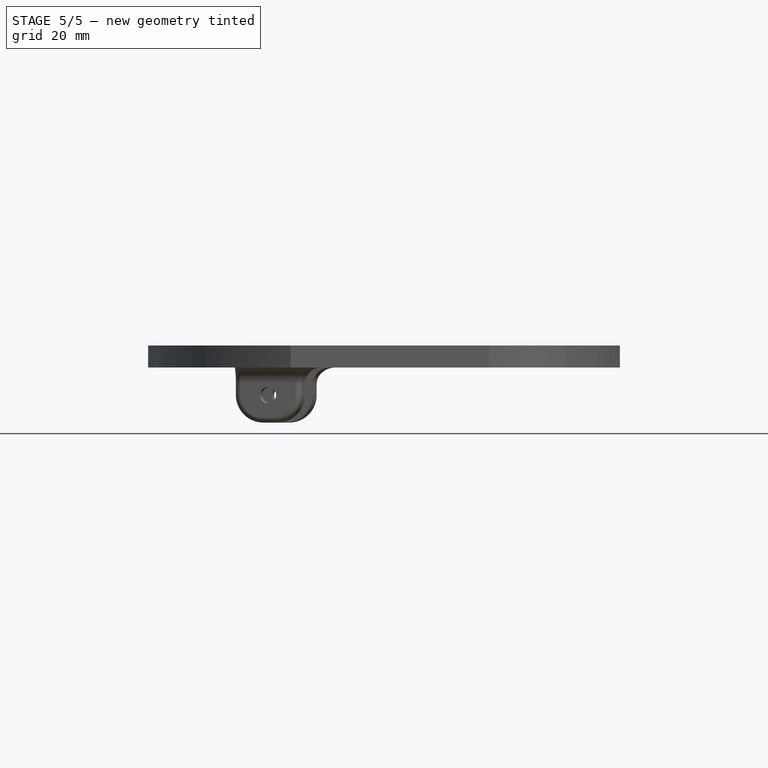
[diagram: stage 5 of 5 — front view after this stage's code; geometry added in this stage tinted green]
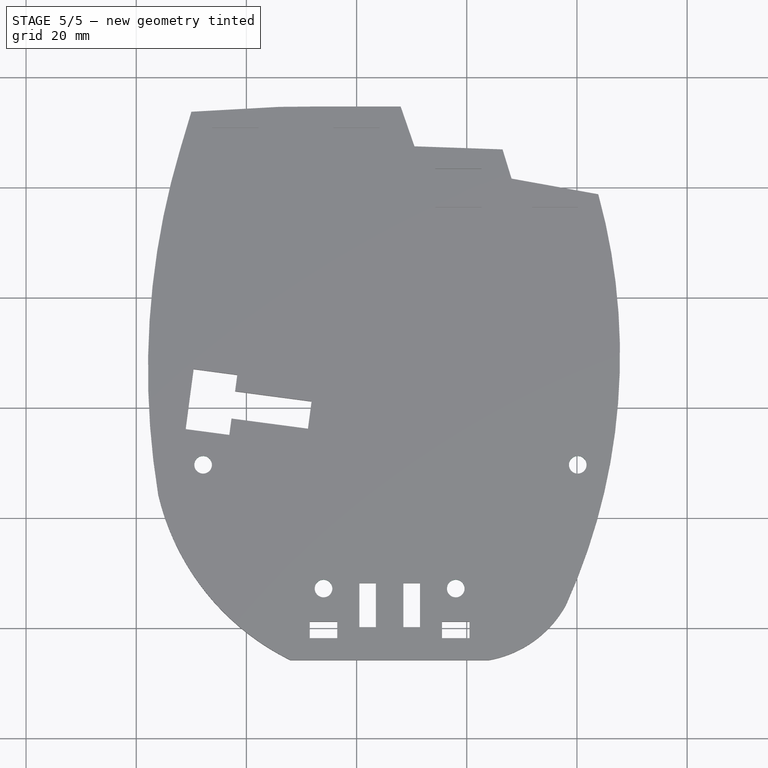
[diagram: stage 5 of 5 — top view after this stage's code; geometry added in this stage tinted green]
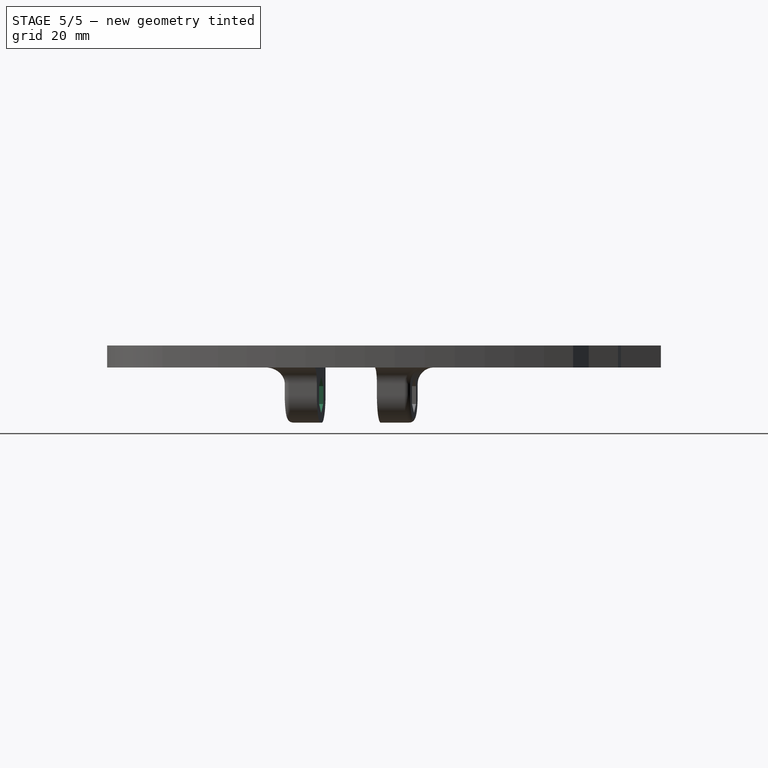
[diagram: stage 5 of 5 — right view after this stage's code; geometry added in this stage tinted green]
FEATURE [Sketcher::SketchObject] Sketch024
  ExternalGeometry = -> [Pocket005]
  Placement = pos=(4.01393,30.2846,0) rot=(0.046605,0.706338,0.706338;3.04845rad)
  Support = -> Pocket005 [Face36]
  sketch-geometry (7):
    g0: LineSegment StartX=19.4849 StartY=-1.75 StartZ=0 EndX=16.6703 EndY=-3.375 EndZ=0
    g1: LineSegment StartX=16.6703 StartY=-3.375 StartZ=0 EndX=16.6703 EndY=-6.625 EndZ=0
    g2: LineSegment StartX=16.6703 StartY=-6.625 StartZ=0 EndX=19.4849 EndY=-8.25 EndZ=0
    g3: LineSegment StartX=19.4849 StartY=-8.25 StartZ=0 EndX=22.2995 EndY=-6.625 EndZ=0
    g4: LineSegment StartX=22.2995 StartY=-6.625 StartZ=0 EndX=22.2995 EndY=-3.375 EndZ=0
    g5: LineSegment StartX=22.2995 StartY=-3.375 StartZ=0 EndX=19.4849 EndY=-1.75 EndZ=0
    g6: Circle [constr] CenterX=19.4849 CenterY=-5 CenterZ=0 NormalX=0 NormalY=0 NormalZ=1 Radius=3.25
  constraints (17):
    c: Coincident(g0,g1)
    c: Coincident(g1,g2)
    c: Coincident(g2,g3)
    c: Coincident(g3,g4)
    c: Coincident(g4,g5)
    c: Coincident(g5,g0)
    c: Equal(g0, g1-g5) x5
    c: PointOnObject(g0,g6)
    c: PointOnObject(g1,g6)
    c: PointOnObject(g2,g6)
    c: PointOnObject(g3,g6)
    c: PointOnObject(g4,g6)
    c: PointOnObject(g5,g6)
    c: Coincident(g3,g-3)
    c: Vertical(g4)
    c: Radius(g6) = 3.25
    c: Coincident(g6,g-3)
FEATURE [PartDesign::Pocket] Pocket006
  Length = 2.5
  Sketch = -> Sketch024
  Type = 0
FEATURE [Sketcher::SketchObject] Sketch025
  ExternalGeometry = -> [Pocket006]
  Placement = pos=(0,0,0) rot=(1,0,0;3.14159rad)
  Support = -> Pocket006 [Face1]
  sketch-geometry (8):
    g0: Circle CenterX=-6 CenterY=-7 CenterZ=0 NormalX=0 NormalY=0 NormalZ=1 Radius=1.6
    g1: Circle CenterX=18 CenterY=-7 CenterZ=0 NormalX=0 NormalY=0 NormalZ=1 Radius=1.6
    g2: Circle CenterX=-27.855 CenterY=-29.4647 CenterZ=0 NormalX=0 NormalY=0 NormalZ=1 Radius=1.6
    g3: Circle CenterX=40.145 CenterY=-29.4647 CenterZ=0 NormalX=0 NormalY=0 NormalZ=1 Radius=1.6
    g4: LineSegment [constr] StartX=-6 StartY=-7 StartZ=0 EndX=-6 EndY=-1 EndZ=0
    g5: LineSegment [constr] StartX=18 StartY=-7 StartZ=0 EndX=18 EndY=-1 EndZ=0
    g6: LineSegment [constr] StartX=-27.855 StartY=-29.4647 StartZ=0 EndX=-27.0666 EndY=-35.4127 EndZ=0
    g7: LineSegment [constr] StartX=-27.855 StartY=-29.4647 StartZ=0 EndX=40.145 EndY=-29.4647 EndZ=0
  constraints (23):
    c: Equal(g2,g0)
    c: Equal(g0,g1)
    c: Equal(g1,g3)
    c: Coincident(g4,g0)
    c: PointOnObject(g4,g-4)
    c: Coincident(g5,g1)
    c: PointOnObject(g5,g-5)
    c: Coincident(g6,g2)
    c: PointOnObject(g6,g-3)
    c: Radius(g1) = 1.6
    c: Perpendicular(g-5,g5)
    c: Perpendicular(g-4,g4)
    c: Perpendicular(g-3,g6)
    c: Symmetric(g-4,g-4,g4)
    c: Symmetric(g-5,g-5,g5)
    c: Symmetric(g-3,g-3,g6)
    c: Equal(g6,g4)
    c: Equal(g4,g5)
    c: Coincident(g7,g2)
    c: Coincident(g7,g3)
    c: Horizontal(g7)
    c: DistanceY(g5) = 6
    c: DistanceX(g7) = 68
FEATURE [PartDesign::Pocket] Pocket007
  Length = 5
  Sketch = -> Sketch025
  Type = 1
FEATURE [Part::FeaturePython] Countersunk  # WARN: FeaturePython — macro-defined, semantics opaque (R4)
  baseObject = -> Pocket007
  diameters = Edge23:M3:0:0:ISO10642 | Edge28:M3:0:0:ISO10642 | Edge29:M3:0:0:ISO10642 | Edge38:M3:0:0:ISO10642
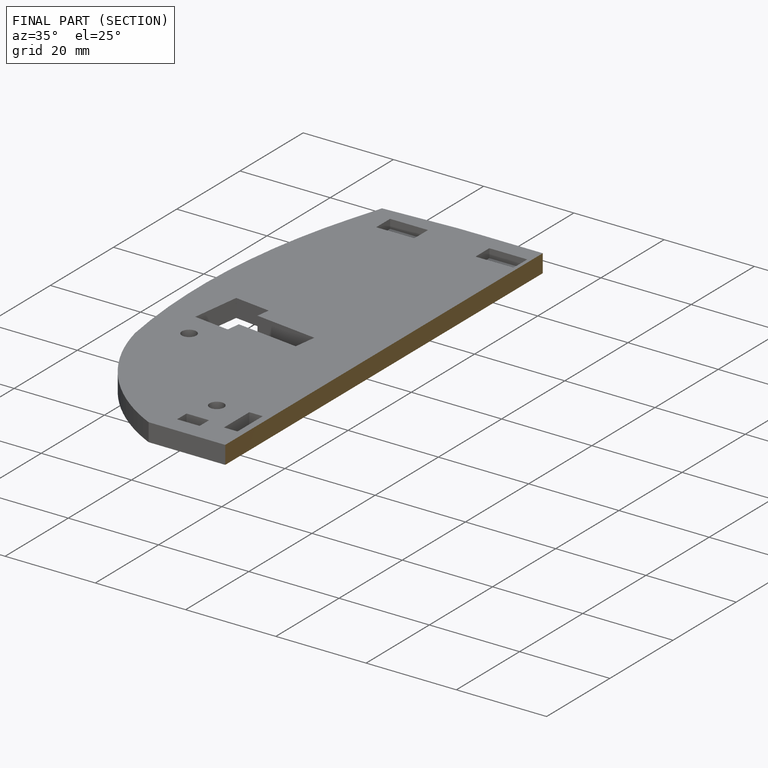
[diagram: finished part — half-section view (interior)]
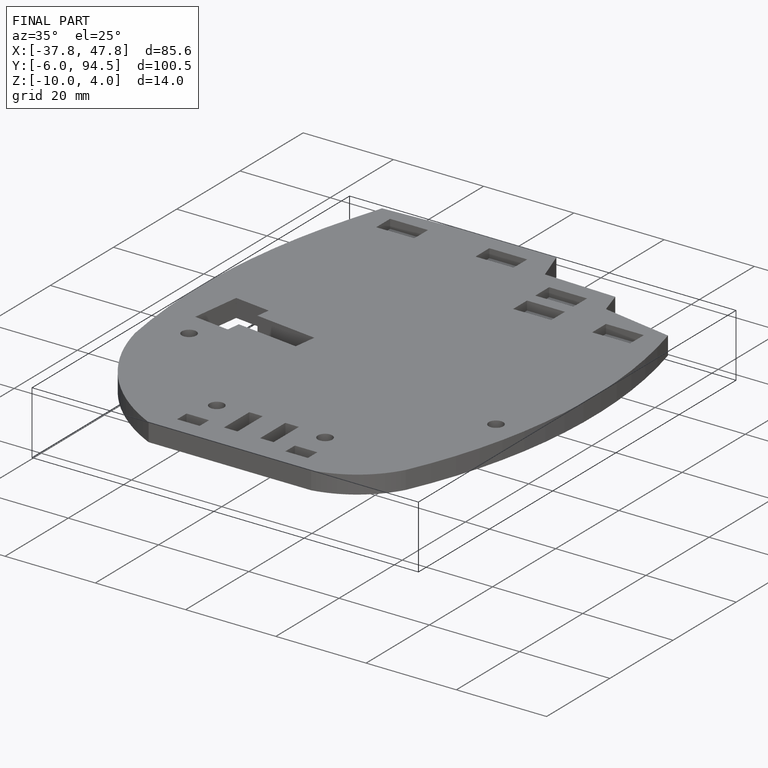
[diagram: finished part — iso view with bounding-box wireframe]
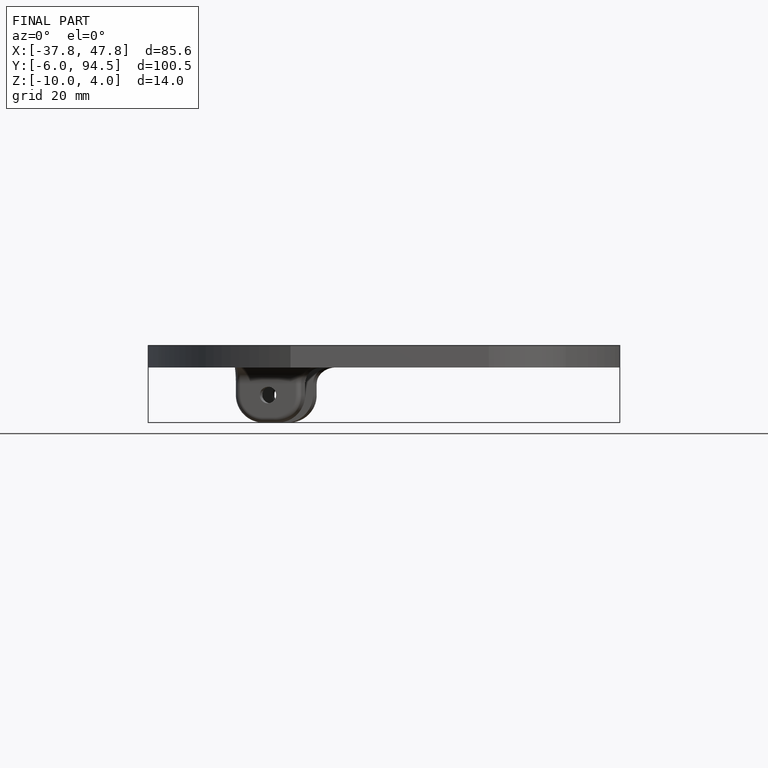
[diagram: finished part — front view with bounding-box wireframe]
